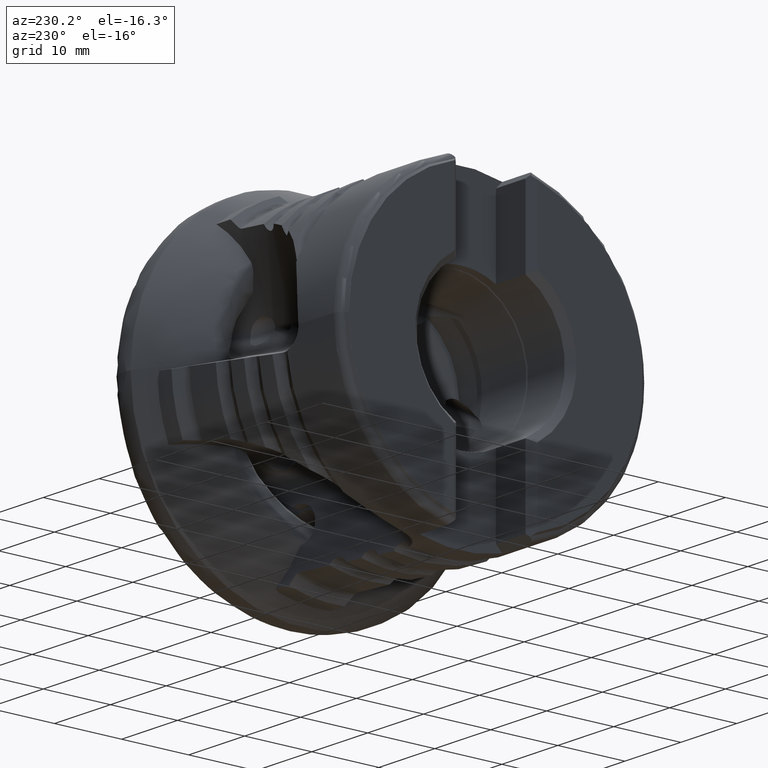
[diagram: clean part render]
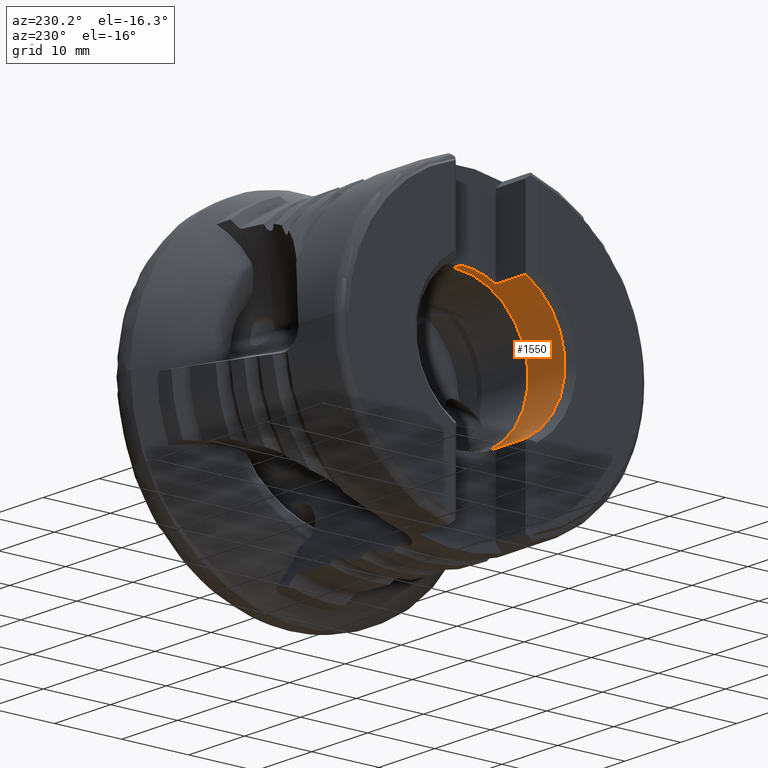
[diagram: same view with one face highlighted and labeled with its STEP entity id]
A machine part, auxiliary view. The second image highlights one B-rep face of the part: STEP entity #1550.
In plain terms, the highlighted cylindrical surface (partial cylindrical patch) has radius 11.075 mm, axis along (1, -0, -0).
Its self-contained STEP definition (entity closure, byte-faithful):
#856 = VERTEX_POINT ( 'NONE', #5030 ) ;
#874 = VERTEX_POINT ( 'NONE', #7230 ) ;
#898 = VERTEX_POINT ( 'NONE', #5039 ) ;
#912 = VERTEX_POINT ( 'NONE', #5051 ) ;
#937 = VERTEX_POINT ( 'NONE', #11732 ) ;
#974 = VERTEX_POINT ( 'NONE', #11003 ) ;
#1080 = VERTEX_POINT ( 'NONE', #10936 ) ;
#1117 = VERTEX_POINT ( 'NONE', #11034 ) ;
#1550 = ADVANCED_FACE ( 'NONE', ( #8173 ), #8178, .F. ) ;
#3310 = DIRECTION ( 'NONE',  ( 1.000000000000000000, -0.0000000000000000000, -0.0000000000000000000 ) ) ;
#3311 = CARTESIAN_POINT ( 'NONE',  ( 0.0000000000000000000, 1.356296330055693000E-015, 11.07499999999999400 ) ) ;
#3313 = CARTESIAN_POINT ( 'NONE',  ( -31.39999999999999100, 0.0000000000000000000, 0.0000000000000000000 ) ) ;
#3314 = DIRECTION ( 'NONE',  ( 1.000000000000000000, -0.0000000000000000000, -0.0000000000000000000 ) ) ;
#3315 = DIRECTION ( 'NONE',  ( 0.0000000000000000000, 0.0000000000000000000, -1.000000000000000000 ) ) ;
#3316 = CARTESIAN_POINT ( 'NONE',  ( 1.701992844354601100E-015, -5.199999999999993100, -9.778324242936514900 ) ) ;
#3317 = DIRECTION ( 'NONE',  ( -1.000000000000000000, 0.0000000000000000000, 0.0000000000000000000 ) ) ;
#3318 = CARTESIAN_POINT ( 'NONE',  ( -32.69999999999999600, 0.0000000000000000000, 0.0000000000000000000 ) ) ;
#3319 = DIRECTION ( 'NONE',  ( -1.000000000000000000, -0.0000000000000000000, -0.0000000000000000000 ) ) ;
#3320 = DIRECTION ( 'NONE',  ( 0.0000000000000000000, 2.664535259100376100E-015, -1.000000000000000000 ) ) ;
#3321 = CARTESIAN_POINT ( 'NONE',  ( 0.0000000000000000000, 0.0000000000000000000, -11.07499999999999400 ) ) ;
#3322 = DIRECTION ( 'NONE',  ( 1.000000000000000000, -0.0000000000000000000, -0.0000000000000000000 ) ) ;
#3323 = DIRECTION ( 'NONE',  ( 1.000000000000000000, -0.0000000000000000000, -0.0000000000000000000 ) ) ;
#3324 = CARTESIAN_POINT ( 'NONE',  ( -32.69999999999999600, 0.0000000000000000000, 0.0000000000000000000 ) ) ;
#3325 = DIRECTION ( 'NONE',  ( -1.000000000000000000, -0.0000000000000000000, -0.0000000000000000000 ) ) ;
#3326 = DIRECTION ( 'NONE',  ( 0.0000000000000000000, 0.0000000000000000000, -1.000000000000000000 ) ) ;
#3327 = CARTESIAN_POINT ( 'NONE',  ( 1.701992844354601100E-015, -5.199999999999993100, 9.778324242936514900 ) ) ;
#3328 = CARTESIAN_POINT ( 'NONE',  ( -37.99999999999999300, 0.0000000000000000000, 0.0000000000000000000 ) ) ;
#3329 = DIRECTION ( 'NONE',  ( 1.000000000000000000, -0.0000000000000000000, -0.0000000000000000000 ) ) ;
#3330 = DIRECTION ( 'NONE',  ( 0.0000000000000000000, 0.0000000000000000000, -1.000000000000000000 ) ) ;
#4240 = EDGE_LOOP ( 'NONE', ( #11814, #11815, #11816, #11817, #11818, #11819, #11820, #11821 ) ) ;
#5030 = CARTESIAN_POINT ( 'NONE',  ( -37.99999999999999300, -5.200000000000000200, -9.778324242936511400 ) ) ;
#5039 = CARTESIAN_POINT ( 'NONE',  ( -32.69999999999999600, -5.199999999999993100, 9.778324242936514900 ) ) ;
#5051 = CARTESIAN_POINT ( 'NONE',  ( -32.69999999999999600, 1.356296330055693000E-015, 11.07499999999999400 ) ) ;
#6907 = AXIS2_PLACEMENT_3D ( 'NONE', #12806, #12807, #12795 ) ;
#7091 = AXIS2_PLACEMENT_3D ( 'NONE', #3313, #3314, #3315 ) ;
#7092 = AXIS2_PLACEMENT_3D ( 'NONE', #3318, #3319, #3320 ) ;
#7093 = AXIS2_PLACEMENT_3D ( 'NONE', #3324, #3325, #3326 ) ;
#7094 = AXIS2_PLACEMENT_3D ( 'NONE', #3328, #3329, #3330 ) ;
#7230 = CARTESIAN_POINT ( 'NONE',  ( -37.99999999999999300, -5.200000000000004600, 9.778324242936509600 ) ) ;
#8173 = FACE_OUTER_BOUND ( 'NONE', #4240, .T. ) ;
#8178 = CYLINDRICAL_SURFACE ( 'NONE', #6907, 11.07499999999999400 ) ;
#8646 = CIRCLE ( 'NONE', #7091, 11.07499999999999600 ) ;
#8648 = LINE ( 'NONE', #3327, #8661 ) ;
#8649 = CIRCLE ( 'NONE', #7092, 11.07499999999999400 ) ;
#8651 = LINE ( 'NONE', #3311, #8653 ) ;
#8652 = LINE ( 'NONE', #3321, #8655 ) ;
#8653 = VECTOR ( 'NONE', #3310, 1000.000000000000000 ) ;
#8654 = CIRCLE ( 'NONE', #7093, 11.07499999999999400 ) ;
#8655 = VECTOR ( 'NONE', #3322, 1000.000000000000000 ) ;
#8656 = LINE ( 'NONE', #3316, #8658 ) ;
#8657 = CIRCLE ( 'NONE', #7094, 11.07499999999999400 ) ;
#8658 = VECTOR ( 'NONE', #3317, 1000.000000000000000 ) ;
#8661 = VECTOR ( 'NONE', #3323, 1000.000000000000000 ) ;
#10002 = EDGE_CURVE ( 'NONE', #974, #1117, #8646, .T. ) ;
#10004 = EDGE_CURVE ( 'NONE', #898, #912, #8649, .T. ) ;
#10005 = EDGE_CURVE ( 'NONE', #912, #974, #8651, .T. ) ;
#10006 = EDGE_CURVE ( 'NONE', #1080, #1117, #8652, .T. ) ;
#10007 = EDGE_CURVE ( 'NONE', #1080, #937, #8654, .T. ) ;
#10008 = EDGE_CURVE ( 'NONE', #937, #856, #8656, .T. ) ;
#10009 = EDGE_CURVE ( 'NONE', #874, #856, #8657, .T. ) ;
#10010 = EDGE_CURVE ( 'NONE', #874, #898, #8648, .T. ) ;
#10936 = CARTESIAN_POINT ( 'NONE',  ( -32.69999999999999600, 0.0000000000000000000, -11.07499999999999400 ) ) ;
#11003 = CARTESIAN_POINT ( 'NONE',  ( -31.39999999999999100, 1.356296330055693400E-015, 11.07499999999999600 ) ) ;
#11034 = CARTESIAN_POINT ( 'NONE',  ( -31.39999999999999100, 0.0000000000000000000, -11.07499999999999600 ) ) ;
#11732 = CARTESIAN_POINT ( 'NONE',  ( -32.69999999999999600, -5.200000000000002800, -9.778324242936516700 ) ) ;
#11814 = ORIENTED_EDGE ( 'NONE', *, *, #10004, .T. ) ;
#11815 = ORIENTED_EDGE ( 'NONE', *, *, #10005, .T. ) ;
#11816 = ORIENTED_EDGE ( 'NONE', *, *, #10002, .T. ) ;
#11817 = ORIENTED_EDGE ( 'NONE', *, *, #10006, .F. ) ;
#11818 = ORIENTED_EDGE ( 'NONE', *, *, #10007, .T. ) ;
#11819 = ORIENTED_EDGE ( 'NONE', *, *, #10008, .T. ) ;
#11820 = ORIENTED_EDGE ( 'NONE', *, *, #10009, .F. ) ;
#11821 = ORIENTED_EDGE ( 'NONE', *, *, #10010, .T. ) ;
#12795 = DIRECTION ( 'NONE',  ( 0.0000000000000000000, 0.0000000000000000000, -1.000000000000000000 ) ) ;
#12806 = CARTESIAN_POINT ( 'NONE',  ( 0.0000000000000000000, 0.0000000000000000000, 0.0000000000000000000 ) ) ;
#12807 = DIRECTION ( 'NONE',  ( 1.000000000000000000, -0.0000000000000000000, -0.0000000000000000000 ) ) ;